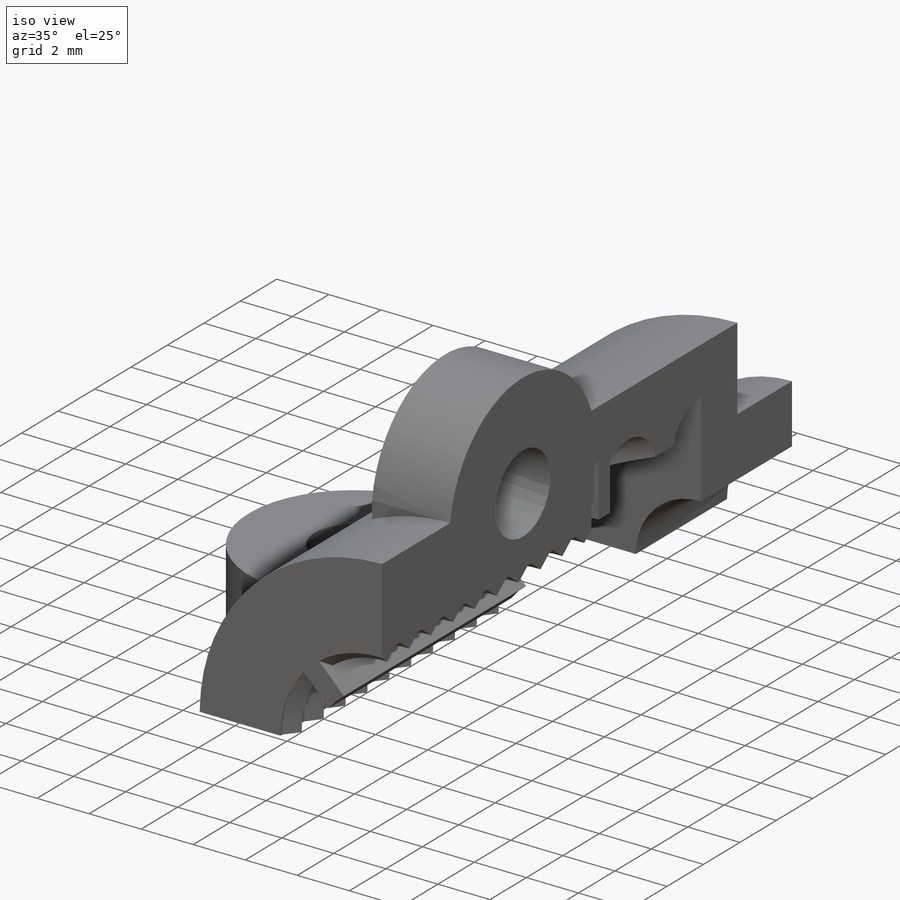
[diagram: iso view]
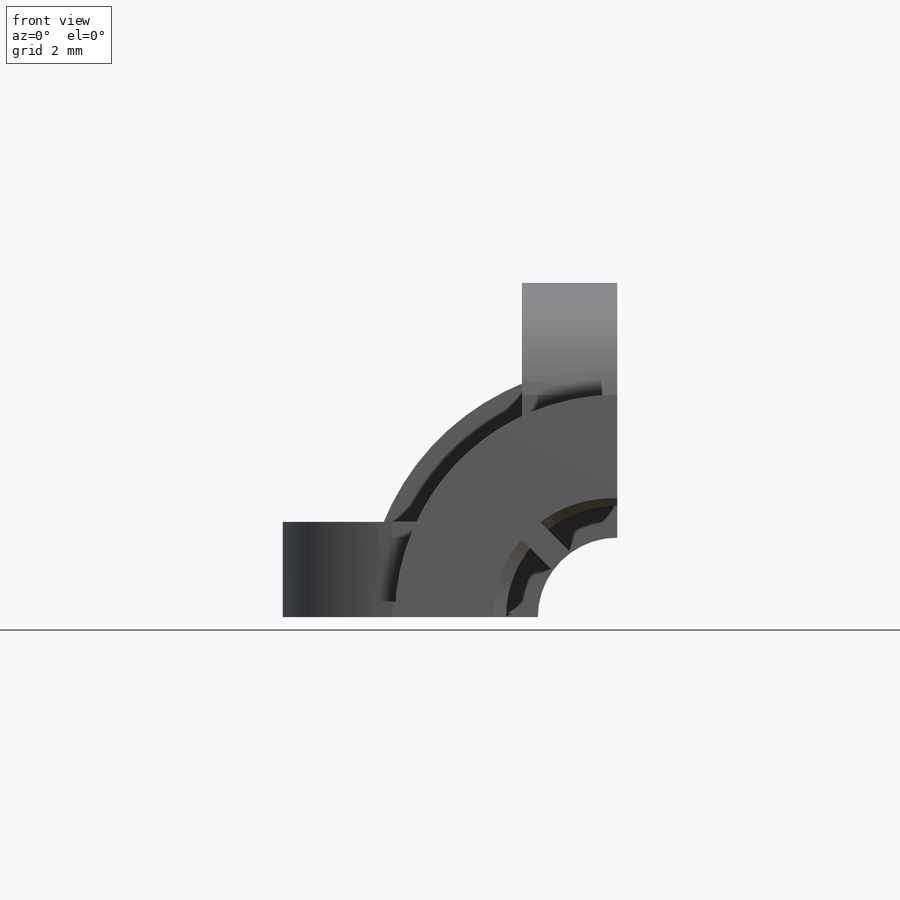
[diagram: front view]
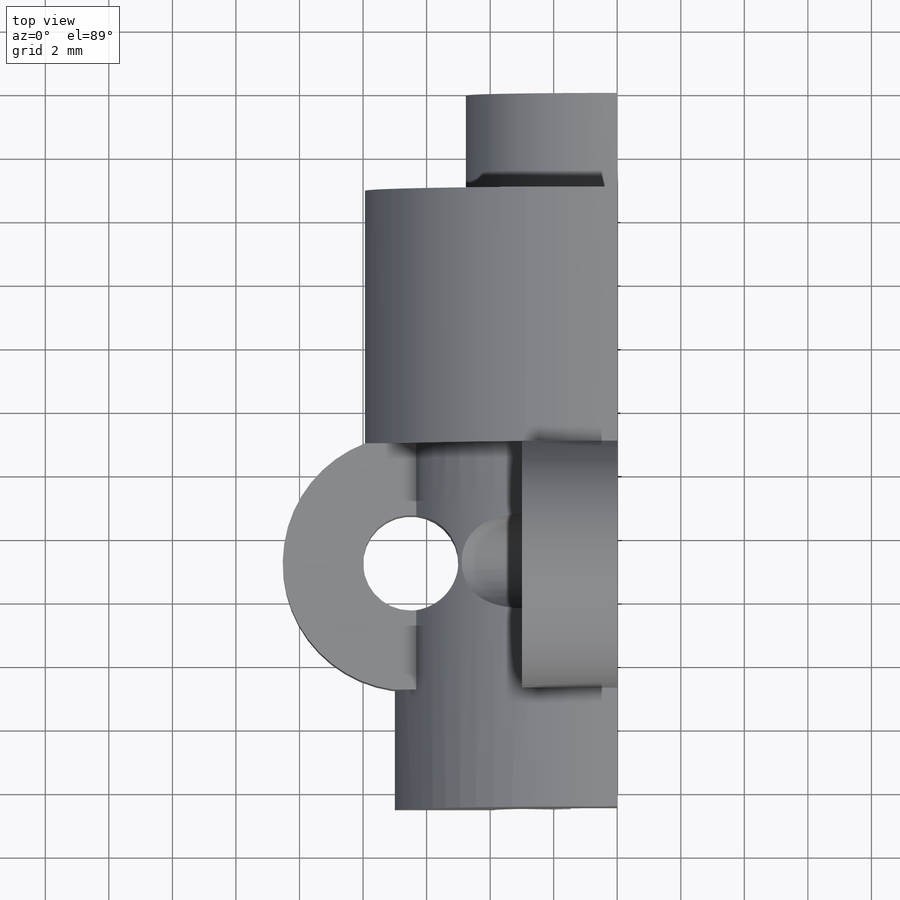
[diagram: top view]
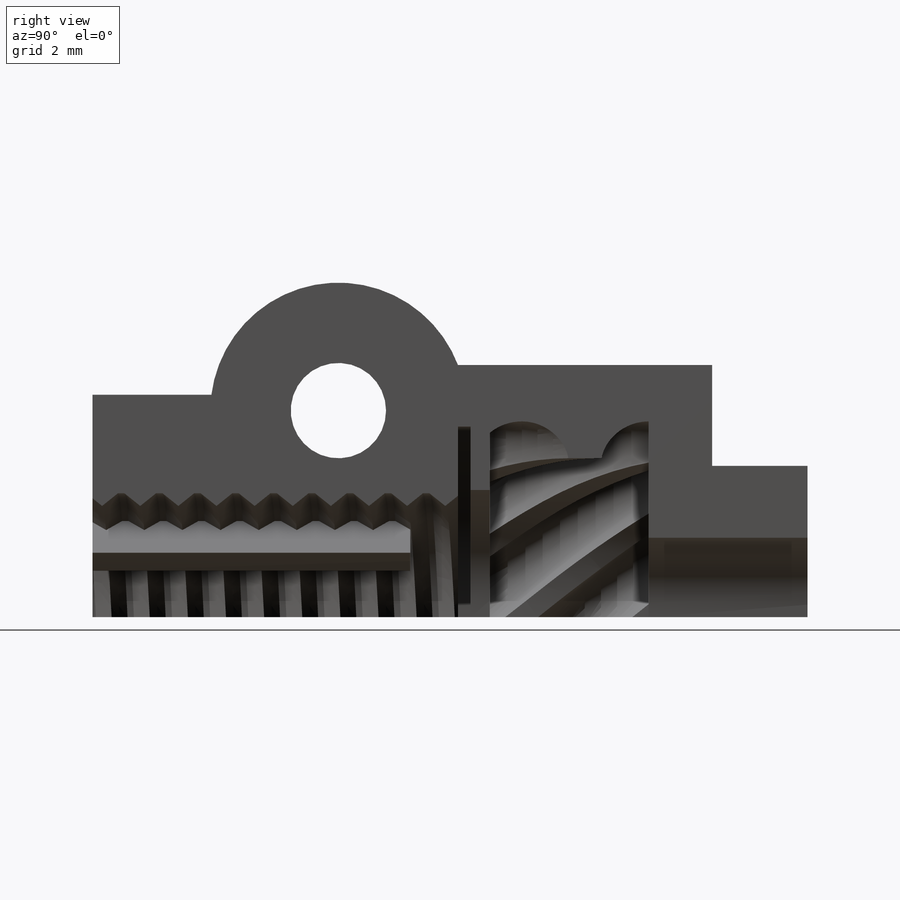
[diagram: right view]
SOLIDWORKS PART (.sldprt)
format: sldprt  version: not decoded by parser v0  size: 977,408 bytes
history: native  units: mm
features: sketch x24, extrude x10, cut_extrude x9, helix x2, sweep x2, material x1, pattern_circular x1 (+16 scaffold rows collapsed)
feature tree (65):
  scaffold x16  (default folders/planes/origin — collapsed)
  material  "Titanium"
  sketch  "Sketch1"  dims[MOLD_SIZE=15.875mm]
  extrude  "Extrude1"  Depth=0.5mm
  sketch  "Sketch3"  dims[c1.D1=~4.023344mm c1.D4=0.4mm c1.MIN_DIAM=8.0mm c1.D2=0.4mm c1.D7=8.0mm c2.D1=5.0mm c2.D2=~0.672043mm c3.D1=0.576mm c3.D3=1.0mm c4.D3=95.0deg c5.D3=~1.357347mm c6.D3=95.0deg c6.D6=1.152mm c6.D7=~1.334959mm c7.D7=~160.193521deg c8.D7=14.2875mm c9.D7=~160.193521deg c10.D7=~3.706675mm c11.D7=18.0deg c12.D7=~3.701459mm c13.D7=18.0deg c13.D1=~3.979317mm c14.D1=~170.864315deg c14.D5=14.2875mm c15.D5=~172.593088deg]
  extrude  "Extrude2"  Depth=5mm
  sketch  "Sketch5"  dims[D1=15.875mm]
  extrude  "Extrude3"  Depth=0.5mm
  sketch  "Sketch6"
  helix  "Helix/Spiral2"  Pitch=13.2mm
  sketch  "Sketch15"  dims[c1.D1=0.5mm c1.D2=0.1mm c1.D3=0.2mm c1.D4=0.5mm c1.D5=0.5mm c1.D6=~0.509902mm c2.D1=4.5mm c2.D6=3.9mm]
  sweep  "Sweep10"
  sketch  "Sketch16"  dims[D1=6.0mm]
  extrude  "Extrude6"  Depth=11.5mm
  sketch  "Sketch18"
  cut_extrude  "Extrude8"  [1 undecoded]
  sketch  "Sketch22"
  helix  "Helix/Spiral3"  Pitch=5mm
  sketch  "Sketch23"  dims[c1.D2=4.245mm c1.D1=2.1225mm c1.D4=~1.737423mm c2.D2=2.2225mm c2.D5=~9.874928mm c2.DIA=2.1225mm c2.D3=2.3225mm c2.D4=~1.737423mm c2.D1=14.2875mm c3.D1=87.9deg c3.D3=~10.701835mm c4.D3=20.0deg c4.D4=~0.787614mm c4.D1=9.525mm c5.D1=90.0deg c6.D1=9.525mm c7.D1=87.9deg c7.D2=~18.664635mm c8.D2=20.0deg]
  sweep  "Cut-Sweep4"
  pattern_circular  "CirPattern9"  Count=10 Angle=360deg
  sketch  "Sketch25"  dims[D1=5.0mm]
  sketch  "Sketch30"  dims[D1=0.4mm D2=0.4mm D3=6.35mm D4=6.35mm]
  extrude  "Extrude10"  Depth=1mm
  sketch  "Sketch31"  dims[D1=0.4mm D2=0.4mm D3=6.35mm D4=6.35mm]
  extrude  "Extrude11"  Depth=9mm
  cut_extrude  "Extrude12"  Depth=0.4mm
  sketch  "Sketch32"
  cut_extrude  "Extrude13"  Depth=0.6mm
  sketch  "Sketch35"  dims[D1=4.7625mm]
  sketch  "Sketch36"  dims[D1=4.7625mm]
  extrude  "Extrude15"  Depth=5mm
  sketch  "Sketch37"  dims[D1=3.175mm]
  cut_extrude  "Extrude16"  [1 undecoded]
  sketch  "Sketch38"  dims[D1=1.5875mm]
  extrude  "Extrude17"  Depth=3mm
  sketch  "Sketch39"
  cut_extrude  "Extrude18"  [1 undecoded]
  sketch  "Sketch40"
  cut_extrude  "Extrude19"  Depth=3mm
  sketch  "Sketch41"  dims[D1=~1.594571mm]
  extrude  "Extrude20"  Depth=3mm
  sketch  "Sketch42"
  cut_extrude  "Extrude21"  [1 undecoded]
  sketch  "Sketch43"
  cut_extrude  "Extrude22"  [1 undecoded]
  sketch  "Sketch44"
  cut_extrude  "Extrude23"  [1 undecoded]
  sketch  "Sketch45"
  extrude  "Extrude24"  Depth=0.2mm HALF_LEN=0.576mm MAX_RADIUS=5mm RESBA=1mm
decode coverage: 30 of 48 modeling features carry decoded parameters
note: ~ marks probable driven/reference dimensions
note: 6 parameter values undecoded
summary: no parameter record found for 6 features
note: suppression state not decoded; provenance and decode notes live in map.json
